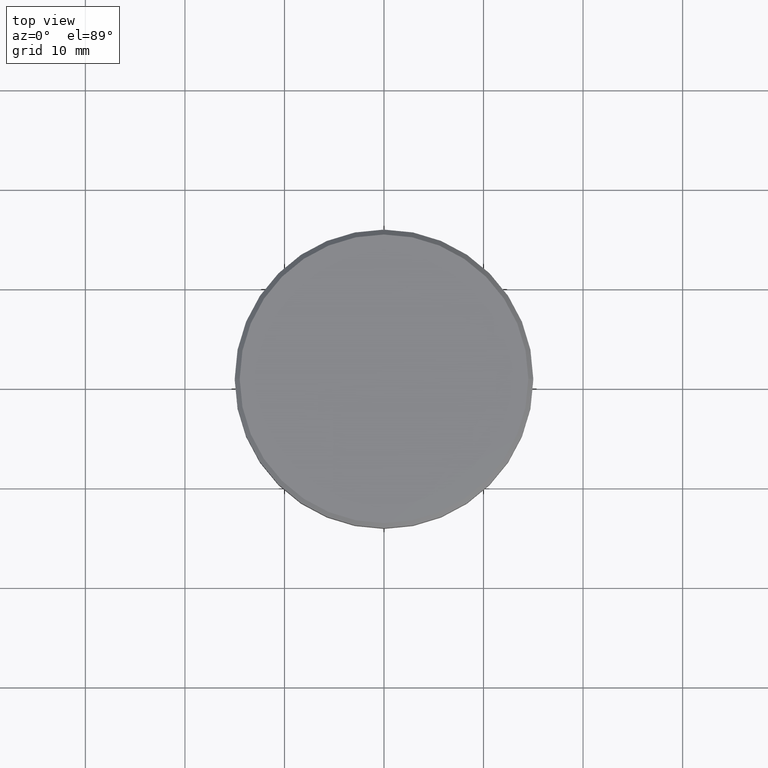
[diagram: clean part render]
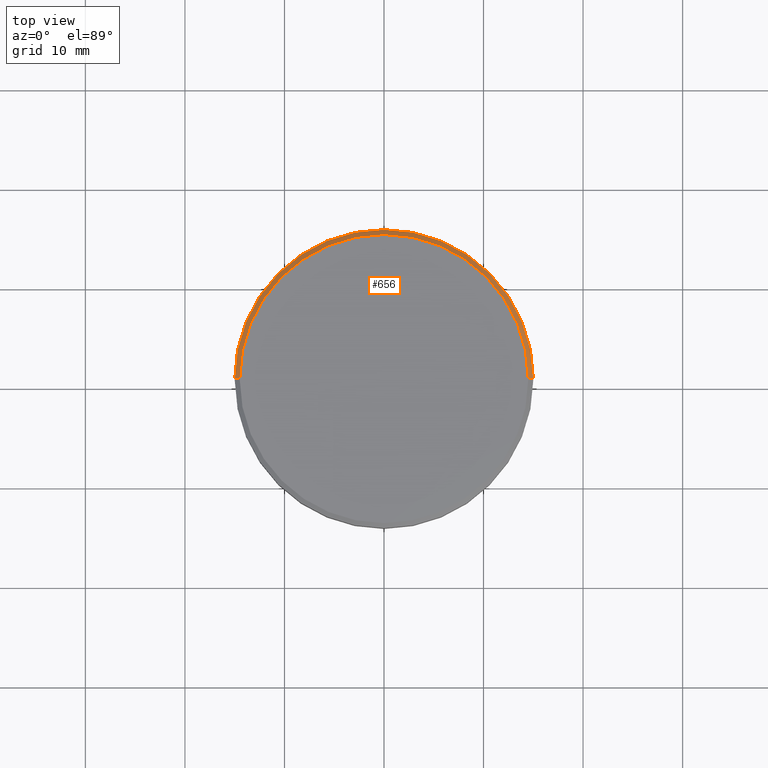
[diagram: same view with one face highlighted and labeled with its STEP entity id]
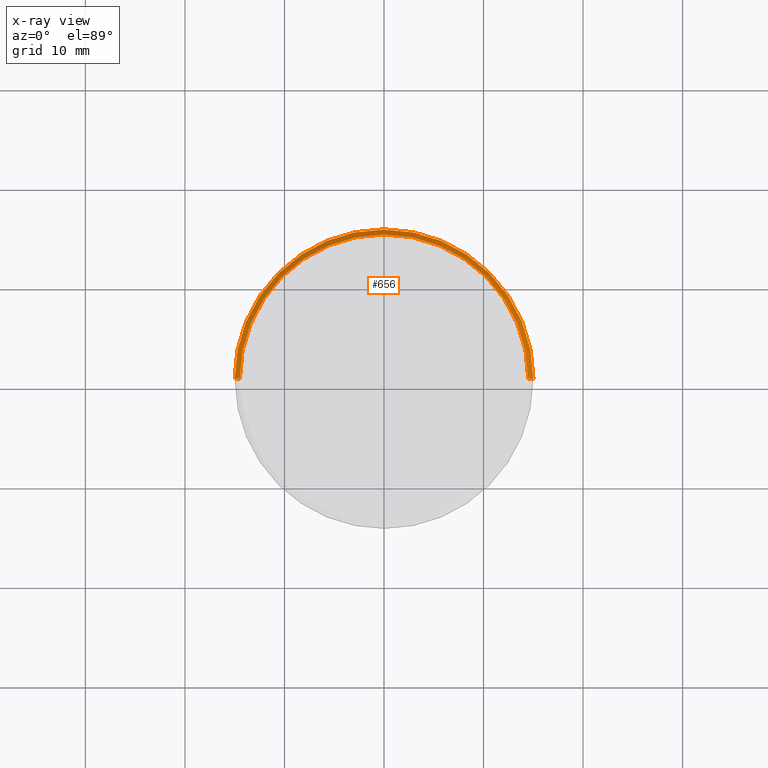
[diagram: x-ray of the same camera — body ghosted, the highlighted face saturated]
A machine part, top view. The second image highlights one B-rep face of the part: STEP entity #656.
The next image is the same camera in x-ray: the body ghosted, the highlighted face saturated — about 0% of this face is hidden behind the body in this view.
In plain terms, the highlighted conical surface has half-angle 45 deg.
Its self-contained STEP definition (entity closure, byte-faithful):
#68 = EDGE_CURVE ( 'NONE', #240, #397, #719, .T. ) ;
#144 = ORIENTED_EDGE ( 'NONE', *, *, #340, .F. ) ;
#156 = DIRECTION ( 'NONE',  ( -1.000000000000000000, 0.000000000000000000, 0.000000000000000000 ) ) ;
#157 = VECTOR ( 'NONE', #553, 1000.000000000000000 ) ;
#158 = CIRCLE ( 'NONE', #588, 14.50000000000000355 ) ;
#180 = AXIS2_PLACEMENT_3D ( 'NONE', #487, #846, #1113 ) ;
#186 = EDGE_CURVE ( 'NONE', #240, #1115, #158, .T. ) ;
#240 = VERTEX_POINT ( 'NONE', #884 ) ;
#340 = EDGE_CURVE ( 'NONE', #649, #397, #675, .T. ) ;
#397 = VERTEX_POINT ( 'NONE', #579 ) ;
#431 = CARTESIAN_POINT ( 'NONE',  ( -14.50000000000000355, 0.000000000000000000, 0.000000000000000000 ) ) ;
#487 = CARTESIAN_POINT ( 'NONE',  ( 0.000000000000000000, 0.000000000000000000, -0.5000000000000038858 ) ) ;
#553 = DIRECTION ( 'NONE',  ( 0.7071067811865414665, 8.659560562354858902E-17, -0.7071067811865536790 ) ) ;
#575 = DIRECTION ( 'NONE',  ( -0.000000000000000000, -0.000000000000000000, 1.000000000000000000 ) ) ;
#579 = CARTESIAN_POINT ( 'NONE',  ( 15.00000000000000000, 0.000000000000000000, -0.5000000000000038858 ) ) ;
#588 = AXIS2_PLACEMENT_3D ( 'NONE', #916, #575, #1089 ) ;
#643 = ORIENTED_EDGE ( 'NONE', *, *, #186, .F. ) ;
#649 = VERTEX_POINT ( 'NONE', #1160 ) ;
#656 = ADVANCED_FACE ( 'NONE', ( #969 ), #668, .T. ) ;
#668 = CONICAL_SURFACE ( 'NONE', #1046, 14.50000000000000355, 0.7853981633974396193 ) ;
#675 = CIRCLE ( 'NONE', #180, 15.00000000000000000 ) ;
#719 = LINE ( 'NONE', #803, #157 ) ;
#740 = DIRECTION ( 'NONE',  ( -0.7071067811865414665, 0.000000000000000000, -0.7071067811865536790 ) ) ;
#803 = CARTESIAN_POINT ( 'NONE',  ( 14.50000000000000355, 1.775737858763662804E-15, 0.000000000000000000 ) ) ;
#836 = EDGE_LOOP ( 'NONE', ( #643, #982, #144, #962 ) ) ;
#839 = CARTESIAN_POINT ( 'NONE',  ( -14.50000000000000355, 0.000000000000000000, 0.000000000000000000 ) ) ;
#846 = DIRECTION ( 'NONE',  ( 0.000000000000000000, 0.000000000000000000, -1.000000000000000000 ) ) ;
#884 = CARTESIAN_POINT ( 'NONE',  ( 14.50000000000000355, 1.806354028742346196E-15, 0.000000000000000000 ) ) ;
#916 = CARTESIAN_POINT ( 'NONE',  ( 0.000000000000000000, 0.000000000000000000, 0.000000000000000000 ) ) ;
#960 = DIRECTION ( 'NONE',  ( 0.000000000000000000, 0.000000000000000000, -1.000000000000000000 ) ) ;
#962 = ORIENTED_EDGE ( 'NONE', *, *, #1009, .F. ) ;
#969 = FACE_OUTER_BOUND ( 'NONE', #836, .T. ) ;
#982 = ORIENTED_EDGE ( 'NONE', *, *, #68, .T. ) ;
#1009 = EDGE_CURVE ( 'NONE', #1115, #649, #1010, .T. ) ;
#1010 = LINE ( 'NONE', #839, #1084 ) ;
#1036 = CARTESIAN_POINT ( 'NONE',  ( 0.000000000000000000, 0.000000000000000000, 0.000000000000000000 ) ) ;
#1046 = AXIS2_PLACEMENT_3D ( 'NONE', #1036, #960, #156 ) ;
#1084 = VECTOR ( 'NONE', #740, 1000.000000000000000 ) ;
#1089 = DIRECTION ( 'NONE',  ( 1.000000000000000000, 0.000000000000000000, 0.000000000000000000 ) ) ;
#1113 = DIRECTION ( 'NONE',  ( 1.000000000000000000, 0.000000000000000000, 0.000000000000000000 ) ) ;
#1115 = VERTEX_POINT ( 'NONE', #431 ) ;
#1160 = CARTESIAN_POINT ( 'NONE',  ( -15.00000000000000000, 1.836970198721029589E-15, -0.5000000000000038858 ) ) ;